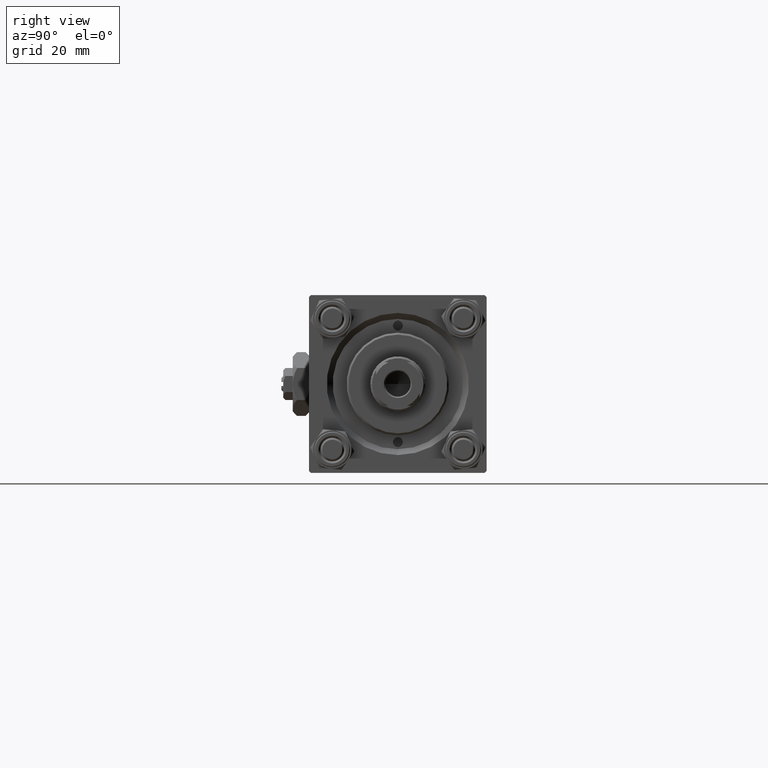
[diagram: clean part render]
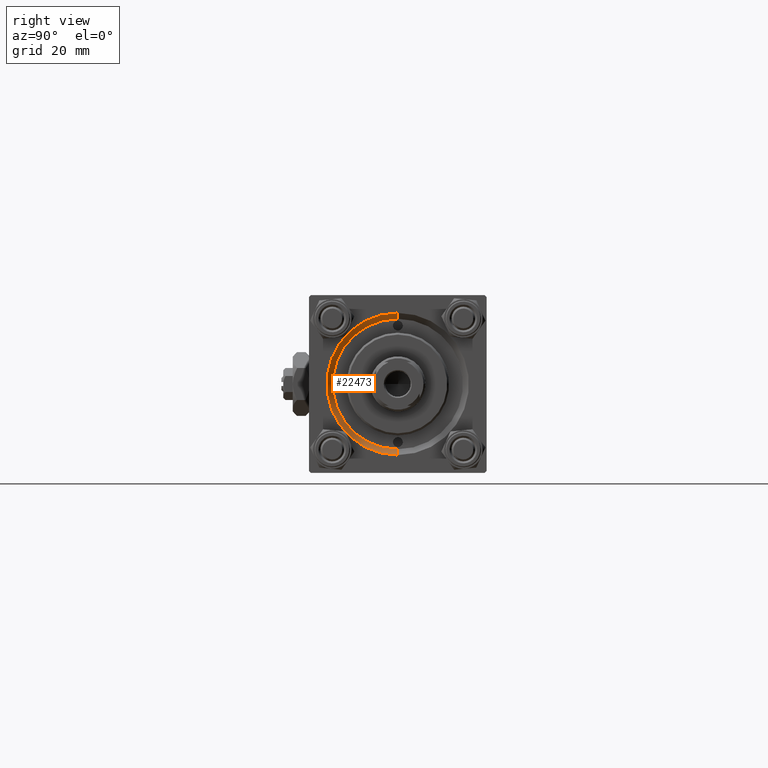
[diagram: same view with one face highlighted and labeled with its STEP entity id]
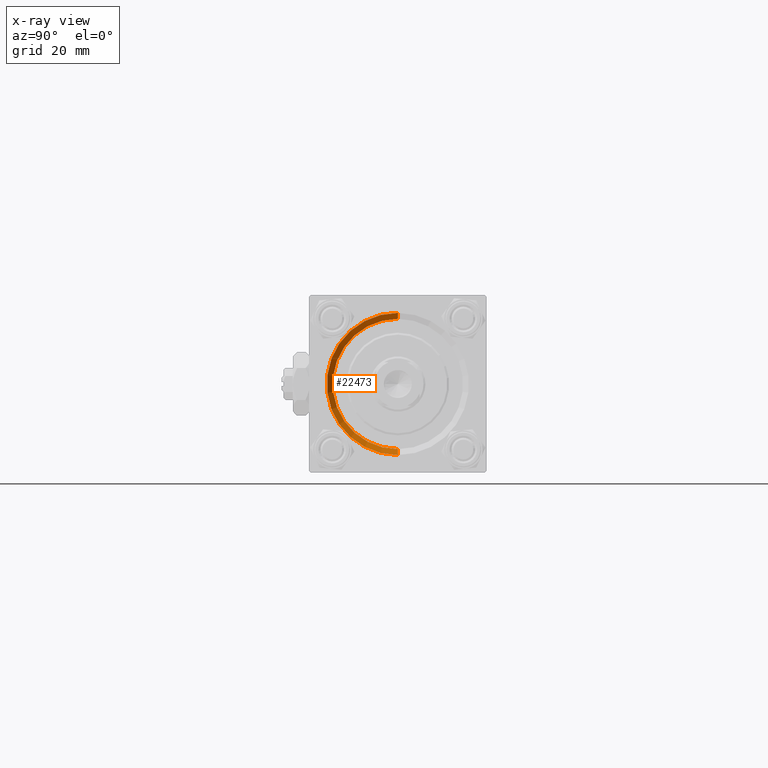
[diagram: x-ray of the same camera — body ghosted, the highlighted face saturated]
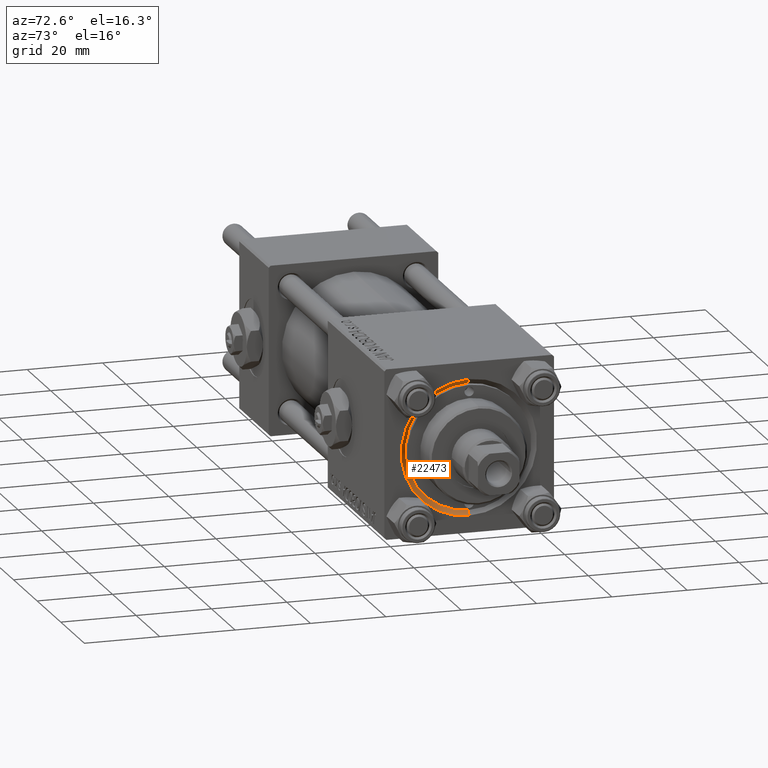
[diagram: same view with one face highlighted and labeled with its STEP entity id]
A machine part, right view. The second image highlights one B-rep face of the part: STEP entity #22473.
The next image is the same camera in x-ray: the body ghosted, the highlighted face saturated — about 0% of this face is hidden behind the body in this view.
A second angle (auxiliary view) of the same face is appended — the face is thin or edge-on in the first view.
In plain terms, the highlighted conical surface has half-angle 45 deg.
Its self-contained STEP definition (entity closure, byte-faithful):
#582 = ORIENTED_EDGE ( 'NONE', *, *, #48511, .F. ) ;
#3559 = ORIENTED_EDGE ( 'NONE', *, *, #35629, .F. ) ;
#7416 = VERTEX_POINT ( 'NONE', #39475 ) ;
#7635 = VECTOR ( 'NONE', #11298, 1000.000000000000114 ) ;
#7863 = DIRECTION ( 'NONE',  ( 0.000000000000000000, 0.000000000000000000, 1.000000000000000000 ) ) ;
#10175 = DIRECTION ( 'NONE',  ( 1.000000000000000000, 0.000000000000000000, 0.000000000000000000 ) ) ;
#10542 = EDGE_CURVE ( 'NONE', #7416, #31974, #50497, .T. ) ;
#11298 = DIRECTION ( 'NONE',  ( 0.7071067811865474617, 8.659560562354932858E-17, 0.7071067811865474617 ) ) ;
#13773 = EDGE_LOOP ( 'NONE', ( #582, #44370, #3559, #29256 ) ) ;
#14398 = DIRECTION ( 'NONE',  ( 0.000000000000000000, 0.000000000000000000, -1.000000000000000000 ) ) ;
#14478 = LINE ( 'NONE', #19200, #7635 ) ;
#14482 = CARTESIAN_POINT ( 'NONE',  ( 121.5000000000000142, 0.000000000000000000, -16.50000000000000000 ) ) ;
#16540 = DIRECTION ( 'NONE',  ( 1.000000000000000000, 0.000000000000000000, 0.000000000000000000 ) ) ;
#19200 = CARTESIAN_POINT ( 'NONE',  ( 121.5000000000000142, 2.020667218593133100E-15, 16.50000000000000000 ) ) ;
#22035 = CARTESIAN_POINT ( 'NONE',  ( 121.5000000000000142, 0.000000000000000000, 0.000000000000000000 ) ) ;
#22473 = ADVANCED_FACE ( 'NONE', ( #46452 ), #35443, .F. ) ;
#24588 = CARTESIAN_POINT ( 'NONE',  ( 123.0000000000000142, 2.204364238465235822E-15, 18.00000000000000355 ) ) ;
#27889 = AXIS2_PLACEMENT_3D ( 'NONE', #22035, #10175, #14398 ) ;
#29098 = VERTEX_POINT ( 'NONE', #24588 ) ;
#29256 = ORIENTED_EDGE ( 'NONE', *, *, #10542, .F. ) ;
#29991 = DIRECTION ( 'NONE',  ( 0.7071067811865474617, 0.000000000000000000, -0.7071067811865474617 ) ) ;
#31193 = AXIS2_PLACEMENT_3D ( 'NONE', #32839, #16540, #7863 ) ;
#31974 = VERTEX_POINT ( 'NONE', #42171 ) ;
#32839 = CARTESIAN_POINT ( 'NONE',  ( 121.5000000000000142, 0.000000000000000000, 0.000000000000000000 ) ) ;
#35443 = CONICAL_SURFACE ( 'NONE', #27889, 16.50000000000000000, 0.7853981633974482790 ) ;
#35629 = EDGE_CURVE ( 'NONE', #31974, #29098, #38376, .T. ) ;
#36689 = AXIS2_PLACEMENT_3D ( 'NONE', #50794, #47102, #43398 ) ;
#38376 = CIRCLE ( 'NONE', #36689, 18.00000000000000355 ) ;
#39475 = CARTESIAN_POINT ( 'NONE',  ( 121.5000000000000142, 0.000000000000000000, -16.50000000000000000 ) ) ;
#42171 = CARTESIAN_POINT ( 'NONE',  ( 123.0000000000000142, 0.000000000000000000, -18.00000000000000355 ) ) ;
#43398 = DIRECTION ( 'NONE',  ( 0.000000000000000000, 0.000000000000000000, 1.000000000000000000 ) ) ;
#43730 = CIRCLE ( 'NONE', #31193, 16.50000000000000000 ) ;
#44370 = ORIENTED_EDGE ( 'NONE', *, *, #48444, .T. ) ;
#46452 = FACE_OUTER_BOUND ( 'NONE', #13773, .T. ) ;
#47102 = DIRECTION ( 'NONE',  ( -1.000000000000000000, 0.000000000000000000, -0.000000000000000000 ) ) ;
#48444 = EDGE_CURVE ( 'NONE', #48798, #29098, #14478, .T. ) ;
#48511 = EDGE_CURVE ( 'NONE', #48798, #7416, #43730, .T. ) ;
#48798 = VERTEX_POINT ( 'NONE', #49593 ) ;
#49593 = CARTESIAN_POINT ( 'NONE',  ( 121.5000000000000142, 2.020667218593133100E-15, 16.50000000000000000 ) ) ;
#50497 = LINE ( 'NONE', #14482, #51101 ) ;
#50794 = CARTESIAN_POINT ( 'NONE',  ( 123.0000000000000142, 0.000000000000000000, 0.000000000000000000 ) ) ;
#51101 = VECTOR ( 'NONE', #29991, 1000.000000000000114 ) ;